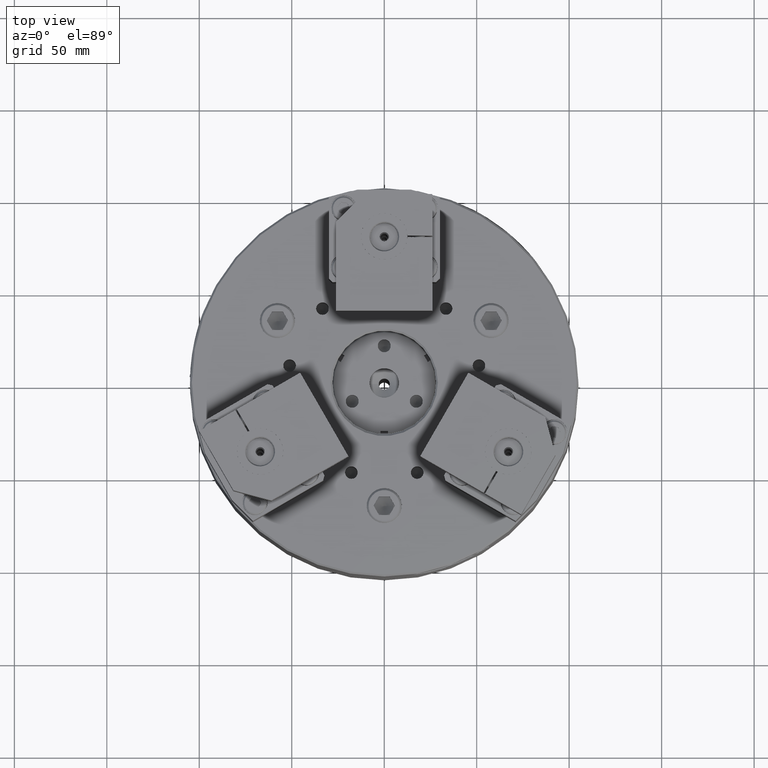
[diagram: clean part render]
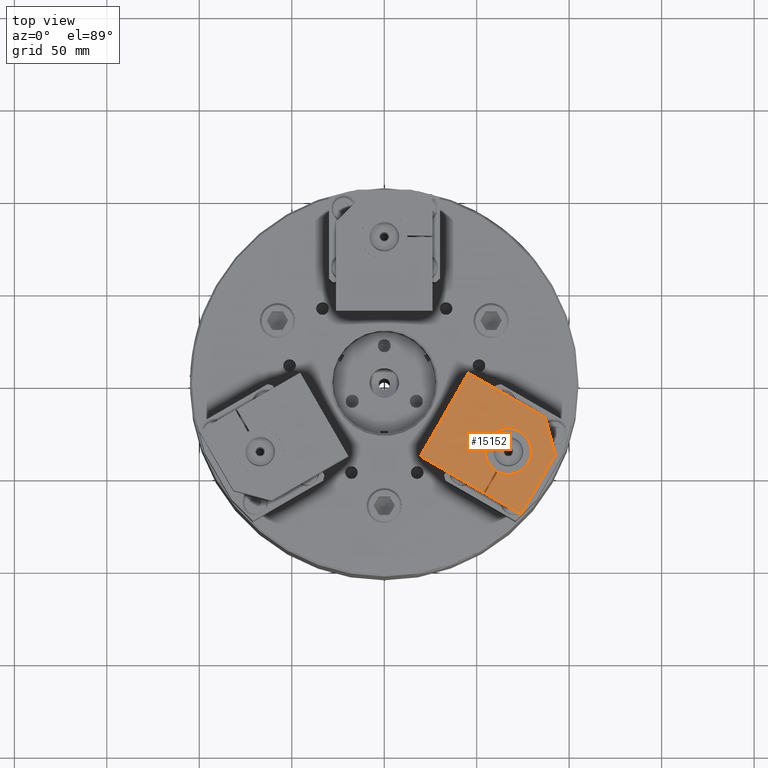
[diagram: same view with one face highlighted and labeled with its STEP entity id]
A machine part, top view. The second image highlights one B-rep face of the part: STEP entity #15152.
In plain terms, the highlighted planar face has unit normal (0, 0, 1).
Its self-contained STEP definition (entity closure, byte-faithful):
#840=LINE('',#26816,#1680);
#854=LINE('',#26847,#1694);
#857=LINE('',#26862,#1697);
#860=LINE('',#26868,#1700);
#864=LINE('',#26877,#1704);
#867=LINE('',#26882,#1707);
#870=LINE('',#26897,#1710);
#871=LINE('',#26898,#1711);
#1680=VECTOR('',#21762,1000.);
#1694=VECTOR('',#21780,1000.);
#1697=VECTOR('',#21795,1000.);
#1700=VECTOR('',#21800,1000.);
#1704=VECTOR('',#21806,1000.);
#1707=VECTOR('',#21811,1000.);
#1710=VECTOR('',#21838,1000.);
#1711=VECTOR('',#21839,1000.);
#2272=PLANE('',#17407);
#3246=CIRCLE('',#17408,12.5);
#6580=ORIENTED_EDGE('',*,*,#8557,.F.);
#6581=ORIENTED_EDGE('',*,*,#8518,.T.);
#6582=ORIENTED_EDGE('',*,*,#8558,.T.);
#6583=ORIENTED_EDGE('',*,*,#8542,.T.);
#6584=ORIENTED_EDGE('',*,*,#8539,.T.);
#6585=ORIENTED_EDGE('',*,*,#8549,.T.);
#6586=ORIENTED_EDGE('',*,*,#8546,.T.);
#6587=ORIENTED_EDGE('',*,*,#8559,.T.);
#6588=ORIENTED_EDGE('',*,*,#8533,.T.);
#8518=EDGE_CURVE('',#9969,#9968,#840,.T.);
#8533=EDGE_CURVE('',#9976,#9983,#854,.T.);
#8539=EDGE_CURVE('',#9990,#9989,#857,.T.);
#8542=EDGE_CURVE('',#9992,#9990,#860,.T.);
#8546=EDGE_CURVE('',#9996,#9995,#864,.T.);
#8549=EDGE_CURVE('',#9989,#9996,#867,.T.);
#8557=EDGE_CURVE('',#9969,#9983,#3246,.T.);
#8558=EDGE_CURVE('',#9968,#9992,#870,.T.);
#8559=EDGE_CURVE('',#9995,#9976,#871,.T.);
#9968=VERTEX_POINT('',#26815);
#9969=VERTEX_POINT('',#26817);
#9976=VERTEX_POINT('',#26833);
#9983=VERTEX_POINT('',#26846);
#9989=VERTEX_POINT('',#26861);
#9990=VERTEX_POINT('',#26863);
#9992=VERTEX_POINT('',#26869);
#9995=VERTEX_POINT('',#26876);
#9996=VERTEX_POINT('',#26878);
#11861=EDGE_LOOP('',(#6580,#6581,#6582,#6583,#6584,#6585,#6586,#6587,#6588));
#13669=FACE_BOUND('',#11861,.T.);
#15152=ADVANCED_FACE('',(#13669),#2272,.T.);
#17407=AXIS2_PLACEMENT_3D('',#26895,#21834,#21835);
#17408=AXIS2_PLACEMENT_3D('',#26896,#21836,#21837);
#21762=DIRECTION('',(-0.500000000000003,-0.866025403784437,0.));
#21780=DIRECTION('',(0.500000000000003,0.866025403784437,0.));
#21795=DIRECTION('',(-0.258819045102518,0.965925826289069,0.));
#21800=DIRECTION('',(0.500000000000003,0.866025403784437,0.));
#21806=DIRECTION('',(-0.500000000000003,-0.866025403784437,0.));
#21811=DIRECTION('',(-0.866025403784437,0.500000000000003,0.));
#21834=DIRECTION('',(0.,0.,1.));
#21835=DIRECTION('',(-0.500000000000003,-0.866025403784437,0.));
#21836=DIRECTION('',(0.,0.,1.));
#21837=DIRECTION('',(-0.500000000000003,-0.866025403784437,0.));
#21838=DIRECTION('',(0.866025403784437,-0.500000000000003,0.));
#21839=DIRECTION('',(0.866025403784437,-0.500000000000003,0.));
#26815=CARTESIAN_POINT('',(54.549981495186,-61.5166604983956,152.));
#26816=CARTESIAN_POINT('',(67.5499814951861,-39.0000000000002,152.));
#26817=CARTESIAN_POINT('',(61.3049834967877,-49.8166538263921,152.));
#26833=CARTESIAN_POINT('',(53.6839560914016,-61.0166604983956,152.));
#26846=CARTESIAN_POINT('',(60.4389580930032,-49.3166538263921,152.));
#26847=CARTESIAN_POINT('',(66.6839560914017,-38.5000000000002,152.));
#26861=CARTESIAN_POINT('',(87.0451720235695,-20.2333395016049,152.));
#26862=CARTESIAN_POINT('',(92.535553080336,-40.7237205583715,152.));
#26863=CARTESIAN_POINT('',(92.535553080336,-40.7237205583715,152.));
#26868=CARTESIAN_POINT('',(74.0355530803359,-72.7666604983956,152.));
#26869=CARTESIAN_POINT('',(74.0355530803359,-72.7666604983956,152.));
#26876=CARTESIAN_POINT('',(19.4759526419163,-41.2666604983954,152.));
#26877=CARTESIAN_POINT('',(45.4759526419165,3.76666049839528,152.));
#26878=CARTESIAN_POINT('',(45.4759526419165,3.76666049839528,152.));
#26882=CARTESIAN_POINT('',(87.0451720235695,-20.2333395016049,152.));
#26895=CARTESIAN_POINT('',(67.1169687932939,-38.7500000000002,152.));
#26896=CARTESIAN_POINT('',(67.1169687932939,-38.7500000000002,152.));
#26897=CARTESIAN_POINT('',(19.4759526419163,-41.2666604983954,152.));
#26898=CARTESIAN_POINT('',(19.4759526419163,-41.2666604983954,152.));